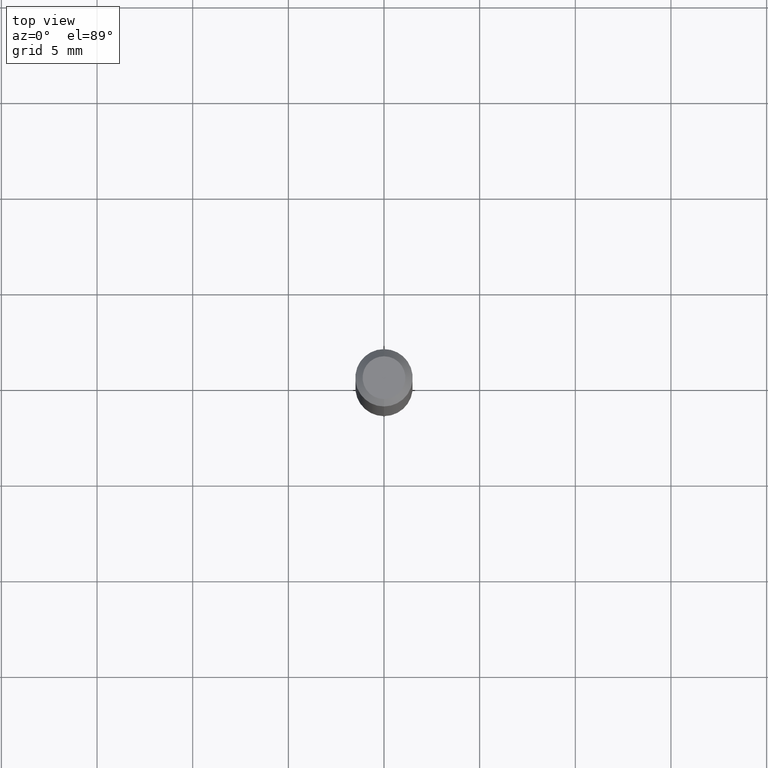
[diagram: clean part render]
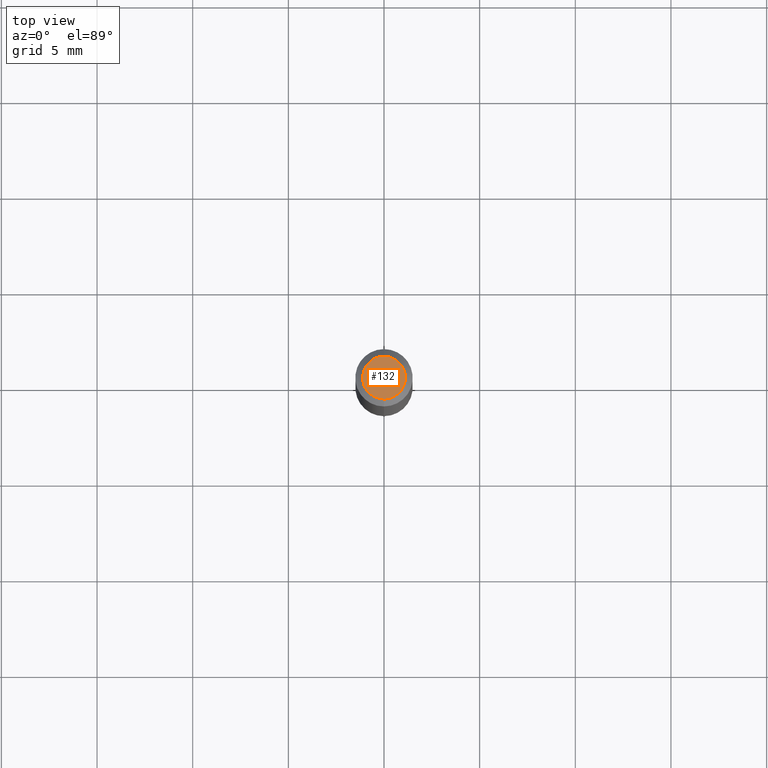
[diagram: same view with one face highlighted and labeled with its STEP entity id]
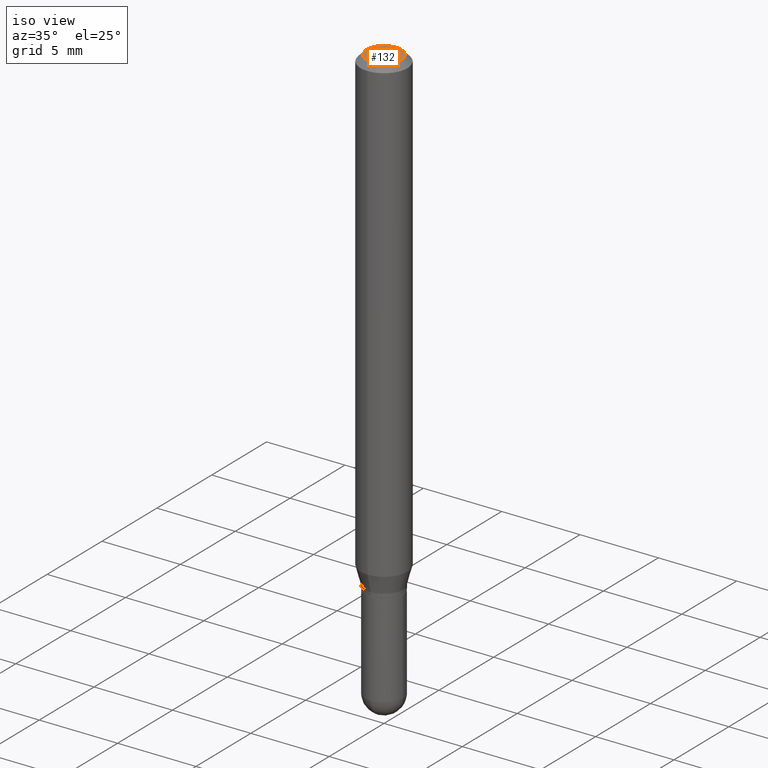
[diagram: same view with one face highlighted and labeled with its STEP entity id]
A machine part, top view. The second image highlights one B-rep face of the part: STEP entity #132.
A second angle (iso view) of the same face is appended — the face is thin or edge-on in the first view.
In plain terms, the highlighted planar face has unit normal (0, -0, -1).
Its self-contained STEP definition (entity closure, byte-faithful):
#23 = CIRCLE ( 'NONE', #506, 0.04404999999999999888 ) ;
#32 = CARTESIAN_POINT ( 'NONE',  ( 2.241530102612863400E-45, -3.200422096834981095E-31, -9.166213745874662169E-17 ) ) ;
#46 = EDGE_LOOP ( 'NONE', ( #270, #300 ) ) ;
#110 = DIRECTION ( 'NONE',  ( -2.445426393882298514E-29, 3.491542075674767907E-15, 1.000000000000000000 ) ) ;
#132 = ADVANCED_FACE ( 'NONE', ( #499 ), #230, .F. ) ;
#148 = AXIS2_PLACEMENT_3D ( 'NONE', #192, #351, #311 ) ;
#157 = CARTESIAN_POINT ( 'NONE',  ( 3.599717260347271507E-16, 0.04404999999999999888, -2.454645658922201879E-16 ) ) ;
#181 = DIRECTION ( 'NONE',  ( -6.982962677686265133E-15, -1.000000000000000000, 3.491542075674767907E-15 ) ) ;
#183 = EDGE_CURVE ( 'NONE', #406, #291, #23, .T. ) ;
#192 = CARTESIAN_POINT ( 'NONE',  ( 3.075995059520799729E-16, 0.04404999999999999888, -1.996334971628468278E-16 ) ) ;
#197 = CIRCLE ( 'NONE', #335, 0.04404999999999999888 ) ;
#199 = DIRECTION ( 'NONE',  ( -6.982962677686265133E-15, -1.000000000000000000, 3.491542075674767907E-15 ) ) ;
#230 = PLANE ( 'NONE',  #148 ) ;
#253 = EDGE_CURVE ( 'NONE', #291, #406, #197, .T. ) ;
#270 = ORIENTED_EDGE ( 'NONE', *, *, #253, .T. ) ;
#277 = CARTESIAN_POINT ( 'NONE',  ( 2.241530102612863400E-45, -3.200422096834981095E-31, -9.166213745874662169E-17 ) ) ;
#291 = VERTEX_POINT ( 'NONE', #157 ) ;
#300 = ORIENTED_EDGE ( 'NONE', *, *, #183, .T. ) ;
#311 = DIRECTION ( 'NONE',  ( 6.982962677686265922E-15, 1.000000000000000000, -3.491542075674767907E-15 ) ) ;
#335 = AXIS2_PLACEMENT_3D ( 'NONE', #32, #110, #181 ) ;
#351 = DIRECTION ( 'NONE',  ( 2.445426393882298234E-29, -3.491542075674767907E-15, -1.000000000000000000 ) ) ;
#406 = VERTEX_POINT ( 'NONE', #476 ) ;
#435 = DIRECTION ( 'NONE',  ( -2.445426393882298514E-29, 3.491542075674767907E-15, 1.000000000000000000 ) ) ;
#476 = CARTESIAN_POINT ( 'NONE',  ( -3.536586717851222218E-16, -0.04404999999999999888, 6.214029097472688291E-17 ) ) ;
#499 = FACE_OUTER_BOUND ( 'NONE', #46, .T. ) ;
#506 = AXIS2_PLACEMENT_3D ( 'NONE', #277, #435, #199 ) ;